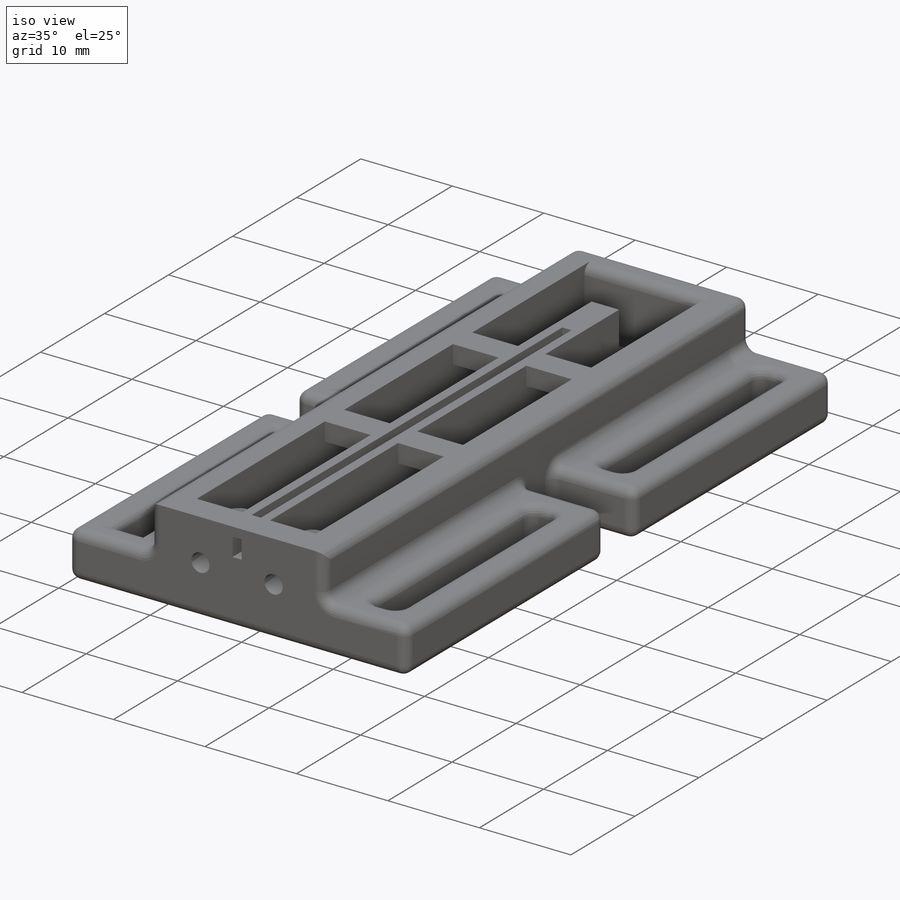
[diagram: iso view]
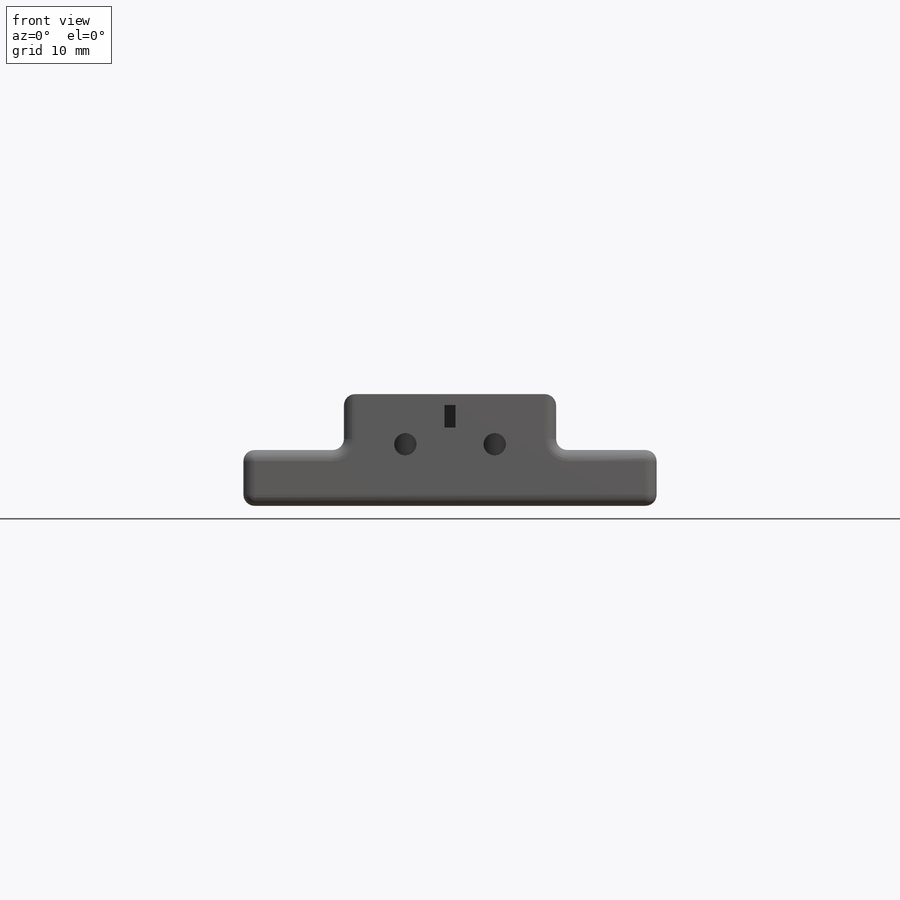
[diagram: front view]
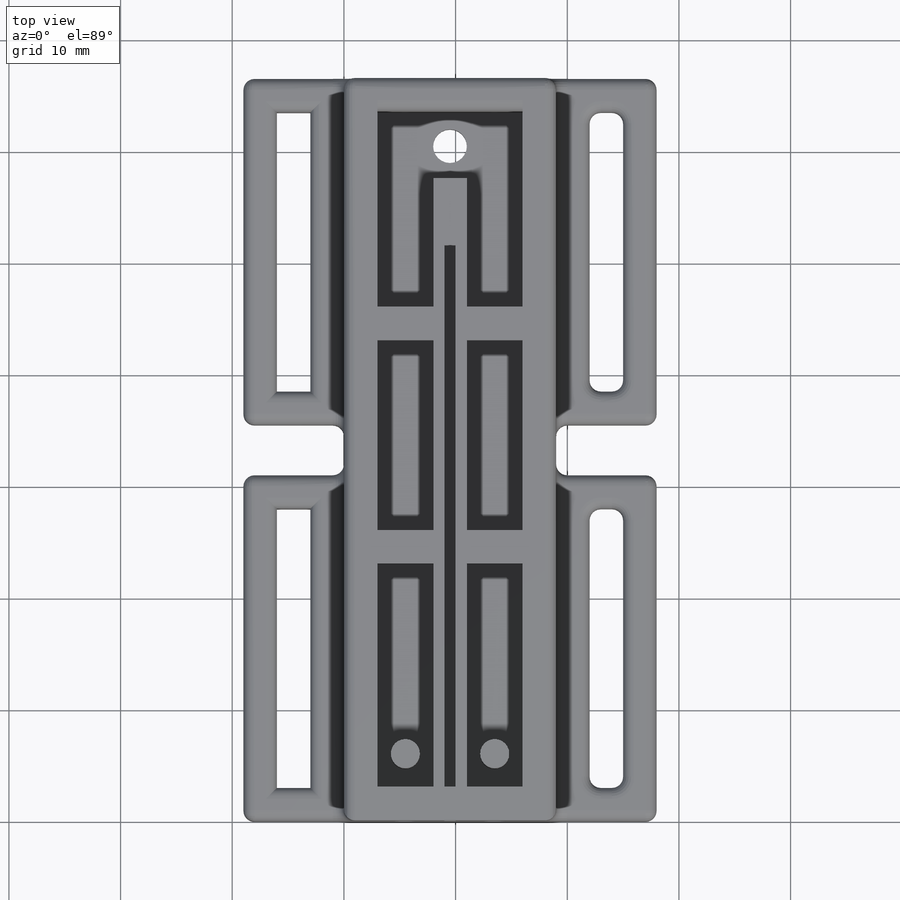
[diagram: top view]
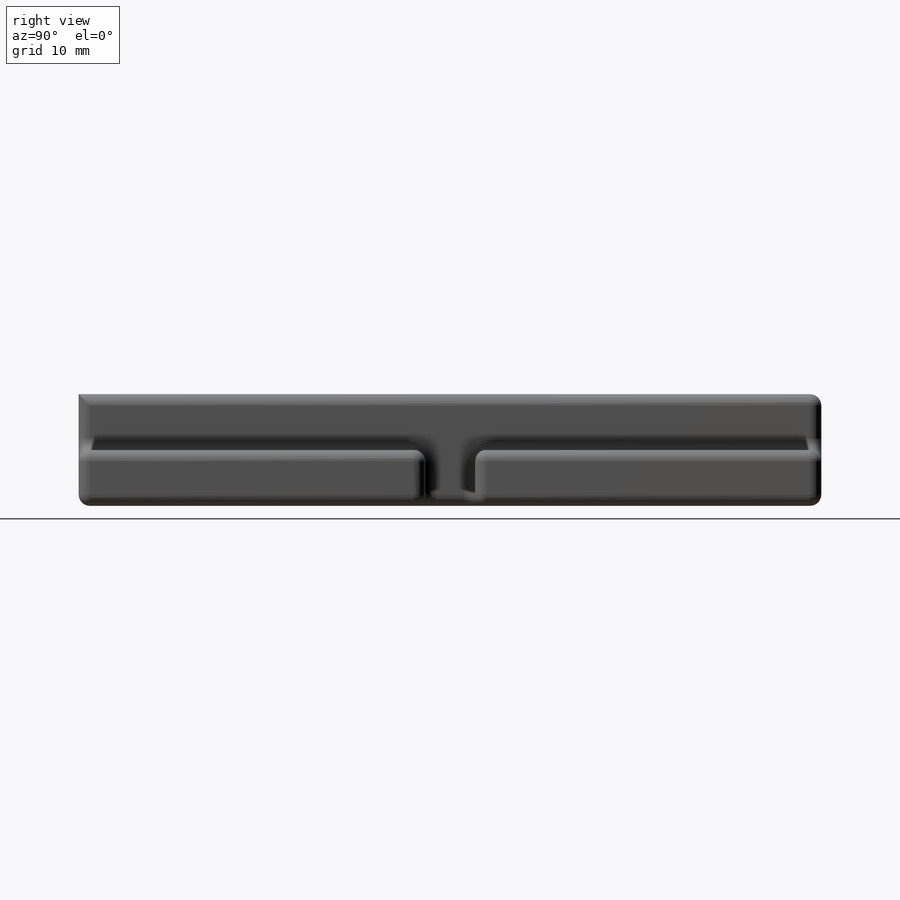
[diagram: right view]
SOLIDWORKS PART (.sldprt)
format: sldprt  version: not decoded by parser v0  size: 830,976 bytes
history: native  units: mm
features: sketch x11, cut_extrude x7, extrude x4, material x1, fillet x1 (+13 scaffold rows collapsed)
feature tree (37):
  scaffold x13  (default folders/planes/origin — collapsed)
  material  "Material <not specified>"
  sketch  "Sketch1"  dims[D1=66.5mm]
  extrude  "Boss-Extrude2"  Depth=10mm
  sketch  "Sketch2"  dims[c1.D1=3.0mm c1.D2=3.0mm c1.D3=3.0mm c1.D4=3.0mm c1.D5=5.0mm c1.D6=5.0mm c1.D7=5.0mm c1.D8=5.0mm c1.D9=5.0mm c1.D10=3.0mm c1.D11=3.0mm c1.D12=3.0mm c2.D2=3.0mm]
  cut_extrude  "Cut-Extrude1"  Depth=7mm
  sketch  "Sketch3"  dims[D1=25.0mm D2=25.0mm D3=3.0mm D4=3.0mm D5=3.0mm D6=3.0mm D7=3.0mm D8=3.0mm D9=3.0mm D10=3.0mm D11=3.0mm D12=3.0mm D13=3.0mm D14=3.0mm D15=25.0mm D16=3.0mm D17=3.0mm D18=3.0mm D19=3.0mm D20=3.0mm D21=3.0mm D22=3.0mm D23=25.0mm D24=3.0mm D25=25.0mm D26=3.0mm D27=3.0mm D28=3.0mm D29=3.0mm D30=3.0mm D31=3.0mm D32=3.0mm D33=3.0mm D34=3.0mm D35=3.0mm D36=25.0mm D37=16.0mm D38=16.0mm D39=16.0mm D40=4.5mm]
  extrude  "Boss-Extrude3"  Depth=5mm
  sketch  "Sketch4"  dims[c1.D1=1.25mm c1.D2=2.6mm c1.D3=2.6mm c1.D4=2.6mm c1.D5=2.6mm c1.D6=2.6mm c1.D7=2.6mm c1.D8=2.6mm c1.D9=2.6mm c1.D10=2.6mm c2.D5=2.6mm c2.D1=2.6mm c2.D3=2.6mm c2.D4=2.6mm c3.D1=3.0mm c3.D2=2.5mm c3.D3=2.5mm c3.D4=3.0mm c3.D5=3.0mm c3.D6=2.5mm c3.D7=2.5mm c3.D8=3.0mm c3.D9=3.0mm c3.D10=2.5mm c4.D5=3.0mm c4.D1=2.5mm c4.D3=3.0mm c4.D4=3.0mm]
  extrude  "Boss-Extrude4"  Depth=5mm
  sketch  "Sketch5"  dims[D1=17.0mm D2=3.0mm D3=37.0mm D4=3.0mm]
  extrude  "Boss-Extrude5"  Depth=2mm
  sketch  "Sketch6"  dims[c1.D1=~0.996795mm c1.D2=3.0mm c1.D11=3.0mm c2.D2=1.52mm c2.D1=14.5mm c3.D2=25.0mm c3.D3=25.0mm c3.D4=25.0mm c3.D5=25.0mm c3.D6=1.5mm c3.D7=1.5mm c3.D8=1.5mm c3.D9=1.5mm c3.D10=1.5mm]
  cut_extrude  "Cut-Extrude4"  Depth=10mm
  sketch  "Sketch7"  dims[D1=3.0mm D2=3.0mm D3=3.0mm D4=3.0mm]
  cut_extrude  "Cut-Extrude5"  Depth=7mm
  sketch  "Sketch10"  dims[c1.D1=1.0mm c1.D2=1.0mm c1.D3=1.0mm c1.D5=1.0mm c1.D6=1.0mm c1.D7=1.0mm c2.D1=1.0mm c2.D2=1.0mm c2.D3=1.0mm c2.D4=1.0mm c3.D1=2.5mm c3.D2=2.5mm c3.D3=2.5mm c3.D4=2.5mm c3.D5=2.5mm c3.D6=2.5mm c3.D7=2.5mm c3.D8=2.5mm c4.D1=2.5mm c4.D2=2.5mm c4.D3=2.5mm c4.D4=2.5mm]
  cut_extrude  "Cut-Extrude6"  Depth=3mm
  sketch  "Sketch11"  dims[c1.D1=~1.246387mm c1.D2=~1.634102mm c1.D3=~1.246387mm c1.D4=~1.634102mm c1.D5=~2.208274mm c1.D6=~2.208274mm c1.D7=~1.292404mm c1.D8=~1.292404mm c1.D9=~0.646202mm c2.D1=2.5mm c2.D2=2.5mm c2.D3=2.5mm c2.D4=2.5mm c2.D5=2.5mm c2.D6=2.5mm c2.D7=2.5mm c2.D8=2.5mm]
  cut_extrude  "Cut-Extrude7"  Depth=3mm
  sketch  "Sketch12"  dims[c1.D1=1.0mm c1.D2=1.0mm c1.D3=1.0mm c1.D4=1.0mm c1.D5=0.0mm c1.D6=0.0mm c1.D7=0.0mm c1.D8=0.0mm c1.D9=0.0mm c1.D10=0.0mm c1.D11=0.0mm c1.D12=0.0mm c1.D13=68.0mm c2.D12=0.0mm c2.D13=0.0mm c2.D14=8.5mm c2.D15=~7.473776mm c2.D16=~2.633917mm c3.D15=3.0mm c3.D16=8.5mm c3.D17=3.0mm c3.D18=8.5mm c3.D19=3.0mm c3.D20=3.0mm c3.D21=3.0mm c3.D22=6.5mm c3.D23=6.5mm c3.D24=3.0mm c3.D25=3.0mm c3.D26=3.0mm c3.D27=6.5mm]
  cut_extrude  "Cut-Extrude8"  Depth=3mm
  sketch  "Sketch13"  dims[D1=2.0mm]
  cut_extrude  "Cut-Extrude9"  Depth=68mm
  fillet  "Fillet1"  Radius=1mm
decode coverage: 23 of 23 modeling features carry decoded parameters
note: ~ marks probable driven/reference dimensions
note: suppression state not decoded; provenance and decode notes live in map.json
